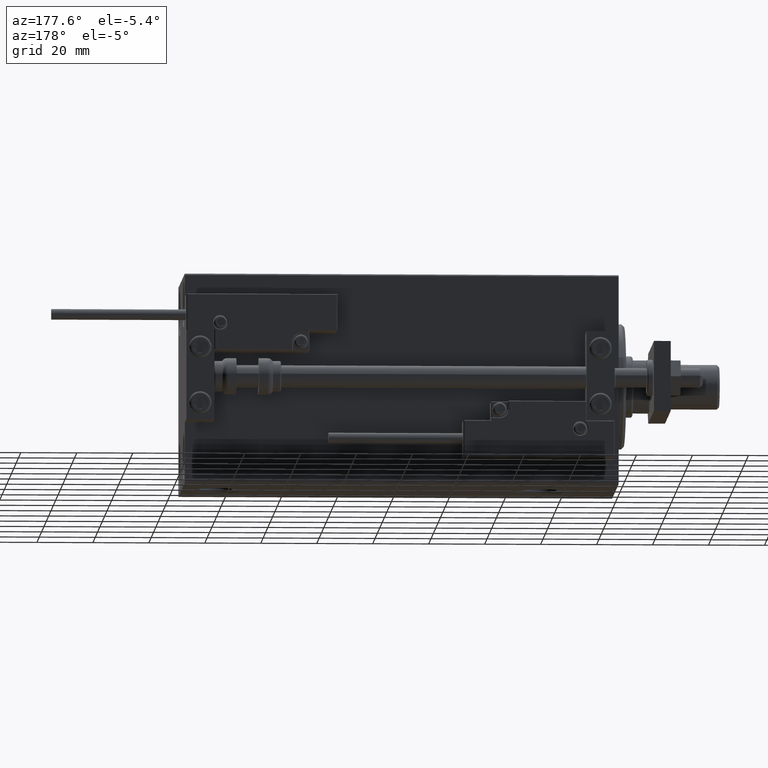
[diagram: clean part render]
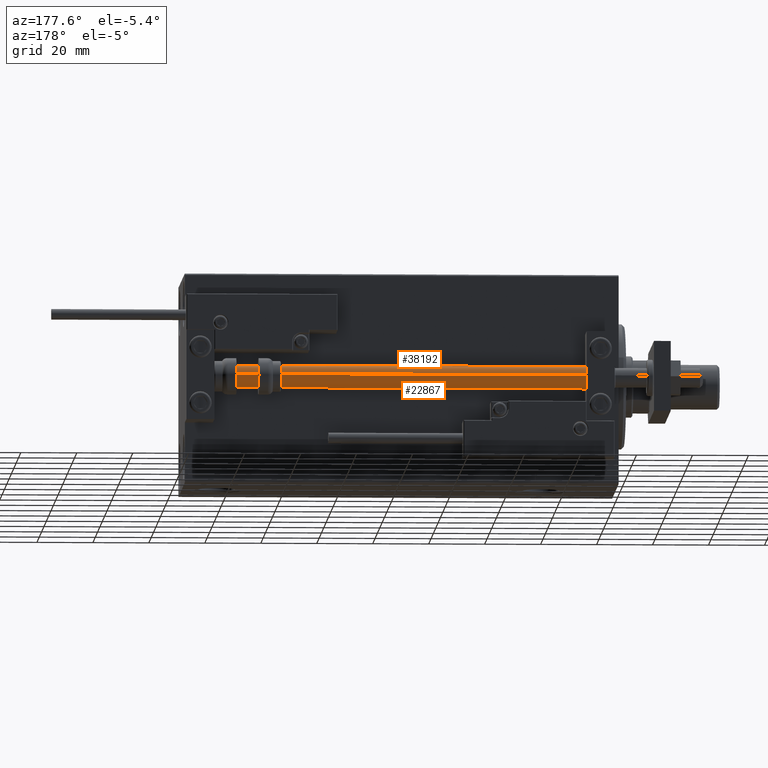
[diagram: same view with one multi-face feature highlighted, each face labeled with its STEP entity id]
A machine part, auxiliary view. The highlighted faces form ONE feature: a constant-radius fillet chain: 2 tangent blend faces with common blend radius 4 mm. The faces share edges in the B-rep.
Their STEP definitions:
[1] entity #22867 (Cylinder):
#5938 = EDGE_CURVE ( 'NONE', #11860, #7581, #26132, .T. ) ;
#7521 = DIRECTION ( 'NONE',  ( -1.000000000000000000, 0.000000000000000000, 0.000000000000000000 ) ) ;
#7581 = VERTEX_POINT ( 'NONE', #40661 ) ;
#7929 = VERTEX_POINT ( 'NONE', #16994 ) ;
#8026 = DIRECTION ( 'NONE',  ( -0.000000000000000000, -0.000000000000000000, -1.000000000000000000 ) ) ;
#8277 = CARTESIAN_POINT ( 'NONE',  ( 0.000000000000000000, 0.000000000000000000, 155.0000000000000000 ) ) ;
#8840 = ORIENTED_EDGE ( 'NONE', *, *, #44226, .T. ) ;
#10252 = VERTEX_POINT ( 'NONE', #12973 ) ;
#10406 = CARTESIAN_POINT ( 'NONE',  ( 0.000000000000000000, 0.000000000000000000, 2.000000000000029310 ) ) ;
#10756 = DIRECTION ( 'NONE',  ( 0.000000000000000000, 0.000000000000000000, 1.000000000000000000 ) ) ;
#11860 = VERTEX_POINT ( 'NONE', #33572 ) ;
#12973 = CARTESIAN_POINT ( 'NONE',  ( 4.000000000000000000, 4.898587196589412829E-16, 2.000000000000029310 ) ) ;
#15831 = AXIS2_PLACEMENT_3D ( 'NONE', #8277, #8026, #7521 ) ;
#16994 = CARTESIAN_POINT ( 'NONE',  ( 4.000000000000000000, 4.898587196589412829E-16, 155.0000000000000000 ) ) ;
#17854 = LINE ( 'NONE', #36614, #47222 ) ;
#18759 = EDGE_LOOP ( 'NONE', ( #28565, #46907, #21983, #8840 ) ) ;
#19275 = AXIS2_PLACEMENT_3D ( 'NONE', #42311, #10756, #19461 ) ;
#19461 = DIRECTION ( 'NONE',  ( 1.000000000000000000, 0.000000000000000000, 0.000000000000000000 ) ) ;
#20207 = VECTOR ( 'NONE', #41520, 1000.000000000000000 ) ;
#21983 = ORIENTED_EDGE ( 'NONE', *, *, #5938, .T. ) ;
#22723 = DIRECTION ( 'NONE',  ( 1.000000000000000000, 0.000000000000000000, 0.000000000000000000 ) ) ;
#22867 = ADVANCED_FACE ( 'NONE', ( #31637 ), #31382, .T. ) ;
#26132 = LINE ( 'NONE', #29971, #20207 ) ;
#28565 = ORIENTED_EDGE ( 'NONE', *, *, #47413, .F. ) ;
#29589 = EDGE_CURVE ( 'NONE', #11860, #7929, #32367, .T. ) ;
#29971 = CARTESIAN_POINT ( 'NONE',  ( -4.000000000000000000, 0.000000000000000000, 155.0000000000000000 ) ) ;
#31382 = CYLINDRICAL_SURFACE ( 'NONE', #15831, 4.000000000000000000 ) ;
#31637 = FACE_OUTER_BOUND ( 'NONE', #18759, .T. ) ;
#32367 = CIRCLE ( 'NONE', #19275, 4.000000000000000000 ) ;
#33572 = CARTESIAN_POINT ( 'NONE',  ( -4.000000000000000000, 0.000000000000000000, 155.0000000000000000 ) ) ;
#36614 = CARTESIAN_POINT ( 'NONE',  ( 4.000000000000000000, 4.898587196589412829E-16, 155.0000000000000000 ) ) ;
#40661 = CARTESIAN_POINT ( 'NONE',  ( -4.000000000000000000, 0.000000000000000000, 2.000000000000029310 ) ) ;
#41365 = CIRCLE ( 'NONE', #47917, 4.000000000000000000 ) ;
#41520 = DIRECTION ( 'NONE',  ( -0.000000000000000000, -0.000000000000000000, -1.000000000000000000 ) ) ;
#42311 = CARTESIAN_POINT ( 'NONE',  ( 0.000000000000000000, 0.000000000000000000, 155.0000000000000000 ) ) ;
#44226 = EDGE_CURVE ( 'NONE', #7581, #10252, #41365, .T. ) ;
#45071 = DIRECTION ( 'NONE',  ( -0.000000000000000000, -0.000000000000000000, -1.000000000000000000 ) ) ;
#45078 = DIRECTION ( 'NONE',  ( -0.000000000000000000, -0.000000000000000000, 1.000000000000000000 ) ) ;
#46907 = ORIENTED_EDGE ( 'NONE', *, *, #29589, .F. ) ;
#47222 = VECTOR ( 'NONE', #45071, 1000.000000000000000 ) ;
#47413 = EDGE_CURVE ( 'NONE', #7929, #10252, #17854, .T. ) ;
#47917 = AXIS2_PLACEMENT_3D ( 'NONE', #10406, #45078, #22723 ) ;
[2] entity #38192 (Cylinder):
#5938 = EDGE_CURVE ( 'NONE', #11860, #7581, #26132, .T. ) ;
#7581 = VERTEX_POINT ( 'NONE', #40661 ) ;
#7929 = VERTEX_POINT ( 'NONE', #16994 ) ;
#8995 = EDGE_LOOP ( 'NONE', ( #37357, #14302, #30224, #11381 ) ) ;
#9518 = FACE_OUTER_BOUND ( 'NONE', #8995, .T. ) ;
#10252 = VERTEX_POINT ( 'NONE', #12973 ) ;
#11381 = ORIENTED_EDGE ( 'NONE', *, *, #5938, .F. ) ;
#11860 = VERTEX_POINT ( 'NONE', #33572 ) ;
#12973 = CARTESIAN_POINT ( 'NONE',  ( 4.000000000000000000, 4.898587196589412829E-16, 2.000000000000029310 ) ) ;
#14164 = DIRECTION ( 'NONE',  ( -0.000000000000000000, -0.000000000000000000, 1.000000000000000000 ) ) ;
#14302 = ORIENTED_EDGE ( 'NONE', *, *, #47413, .T. ) ;
#14417 = DIRECTION ( 'NONE',  ( 1.000000000000000000, 0.000000000000000000, 0.000000000000000000 ) ) ;
#16799 = CIRCLE ( 'NONE', #20074, 4.000000000000000000 ) ;
#16994 = CARTESIAN_POINT ( 'NONE',  ( 4.000000000000000000, 4.898587196589412829E-16, 155.0000000000000000 ) ) ;
#17854 = LINE ( 'NONE', #36614, #47222 ) ;
#20074 = AXIS2_PLACEMENT_3D ( 'NONE', #25514, #33471, #45513 ) ;
#20207 = VECTOR ( 'NONE', #41520, 1000.000000000000000 ) ;
#25441 = CARTESIAN_POINT ( 'NONE',  ( 0.000000000000000000, 0.000000000000000000, 155.0000000000000000 ) ) ;
#25514 = CARTESIAN_POINT ( 'NONE',  ( 0.000000000000000000, 0.000000000000000000, 155.0000000000000000 ) ) ;
#26132 = LINE ( 'NONE', #29971, #20207 ) ;
#29425 = CIRCLE ( 'NONE', #33524, 4.000000000000000000 ) ;
#29971 = CARTESIAN_POINT ( 'NONE',  ( -4.000000000000000000, 0.000000000000000000, 155.0000000000000000 ) ) ;
#30224 = ORIENTED_EDGE ( 'NONE', *, *, #37742, .T. ) ;
#32888 = DIRECTION ( 'NONE',  ( -0.000000000000000000, -0.000000000000000000, -1.000000000000000000 ) ) ;
#33471 = DIRECTION ( 'NONE',  ( 0.000000000000000000, 0.000000000000000000, 1.000000000000000000 ) ) ;
#33524 = AXIS2_PLACEMENT_3D ( 'NONE', #45752, #14164, #14417 ) ;
#33572 = CARTESIAN_POINT ( 'NONE',  ( -4.000000000000000000, 0.000000000000000000, 155.0000000000000000 ) ) ;
#36614 = CARTESIAN_POINT ( 'NONE',  ( 4.000000000000000000, 4.898587196589412829E-16, 155.0000000000000000 ) ) ;
#37357 = ORIENTED_EDGE ( 'NONE', *, *, #44512, .F. ) ;
#37742 = EDGE_CURVE ( 'NONE', #10252, #7581, #29425, .T. ) ;
#38192 = ADVANCED_FACE ( 'NONE', ( #9518 ), #45688, .T. ) ;
#40661 = CARTESIAN_POINT ( 'NONE',  ( -4.000000000000000000, 0.000000000000000000, 2.000000000000029310 ) ) ;
#41520 = DIRECTION ( 'NONE',  ( -0.000000000000000000, -0.000000000000000000, -1.000000000000000000 ) ) ;
#44512 = EDGE_CURVE ( 'NONE', #7929, #11860, #16799, .T. ) ;
#45071 = DIRECTION ( 'NONE',  ( -0.000000000000000000, -0.000000000000000000, -1.000000000000000000 ) ) ;
#45188 = DIRECTION ( 'NONE',  ( -1.000000000000000000, 0.000000000000000000, 0.000000000000000000 ) ) ;
#45513 = DIRECTION ( 'NONE',  ( 1.000000000000000000, 0.000000000000000000, 0.000000000000000000 ) ) ;
#45688 = CYLINDRICAL_SURFACE ( 'NONE', #49079, 4.000000000000000000 ) ;
#45752 = CARTESIAN_POINT ( 'NONE',  ( 0.000000000000000000, 0.000000000000000000, 2.000000000000029310 ) ) ;
#47222 = VECTOR ( 'NONE', #45071, 1000.000000000000000 ) ;
#47413 = EDGE_CURVE ( 'NONE', #7929, #10252, #17854, .T. ) ;
#49079 = AXIS2_PLACEMENT_3D ( 'NONE', #25441, #32888, #45188 ) ;